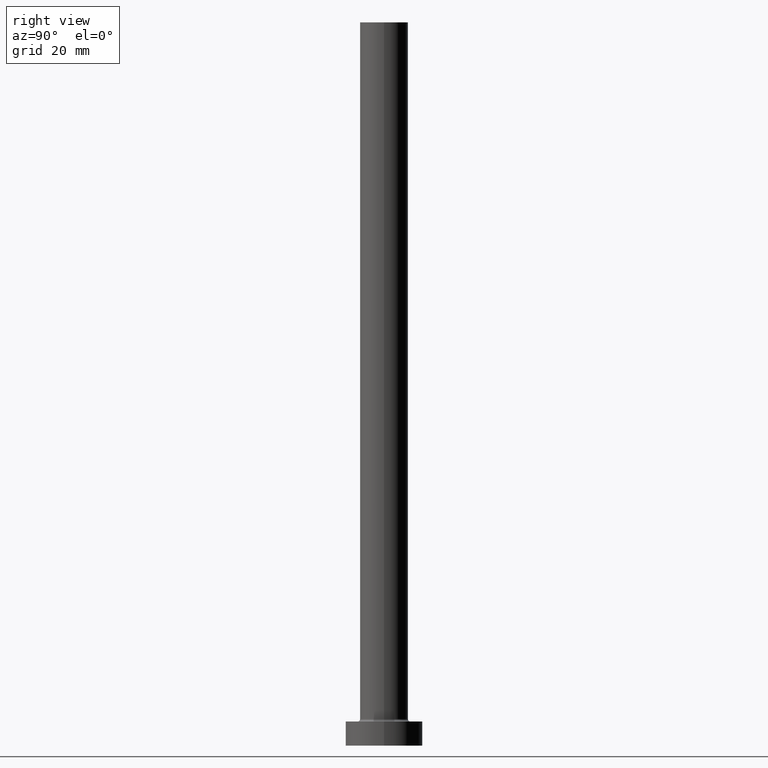
[diagram: clean part render]
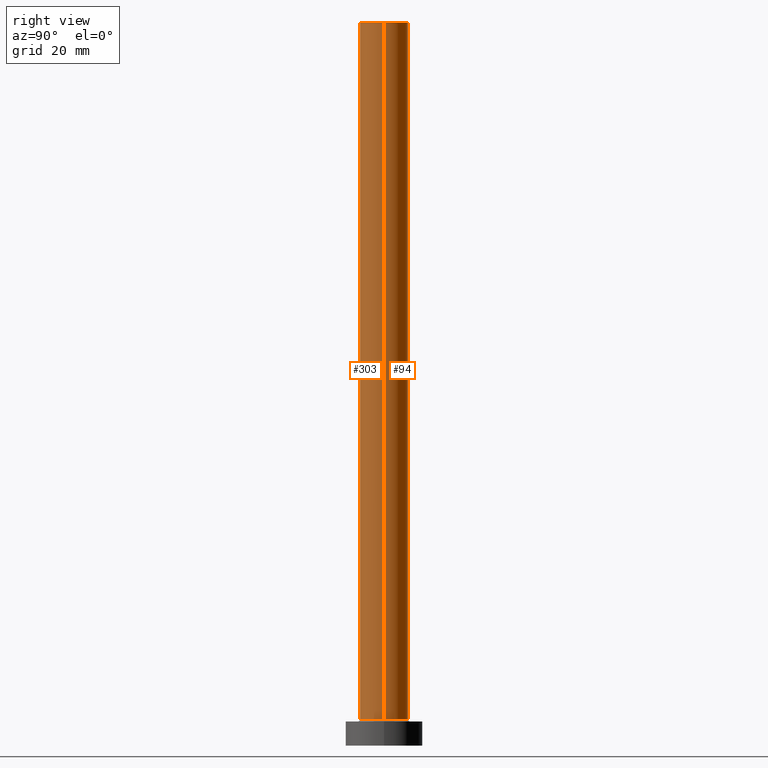
[diagram: same view with one multi-face feature highlighted, each face labeled with its STEP entity id]
A machine part, right view. The highlighted faces form ONE feature: a constant-radius fillet chain: 2 tangent blend faces with common blend radius 5 mm. The faces share edges in the B-rep.
Their STEP definitions:
[1] entity #303 (Cylinder):
#11 = CARTESIAN_POINT ( 'NONE',  ( 0.000000000000000000, 0.000000000000000000, 5.500000000000005329 ) ) ;
#43 = VERTEX_POINT ( 'NONE', #396 ) ;
#51 = EDGE_CURVE ( 'NONE', #305, #43, #143, .T. ) ;
#73 = DIRECTION ( 'NONE',  ( -0.000000000000000000, -0.000000000000000000, -1.000000000000000000 ) ) ;
#74 = CARTESIAN_POINT ( 'NONE',  ( 5.000000000000000000, 6.123233995736766282E-16, 150.0000000000000000 ) ) ;
#78 = VECTOR ( 'NONE', #307, 1000.000000000000000 ) ;
#82 = EDGE_LOOP ( 'NONE', ( #362, #153, #257, #186 ) ) ;
#83 = DIRECTION ( 'NONE',  ( 1.000000000000000000, 0.000000000000000000, 0.000000000000000000 ) ) ;
#89 = CIRCLE ( 'NONE', #343, 5.000000000000000000 ) ;
#122 = DIRECTION ( 'NONE',  ( 1.000000000000000000, 0.000000000000000000, 0.000000000000000000 ) ) ;
#134 = VERTEX_POINT ( 'NONE', #458 ) ;
#143 = LINE ( 'NONE', #145, #415 ) ;
#145 = CARTESIAN_POINT ( 'NONE',  ( -5.000000000000000000, 0.000000000000000000, 150.0000000000000000 ) ) ;
#153 = ORIENTED_EDGE ( 'NONE', *, *, #359, .F. ) ;
#186 = ORIENTED_EDGE ( 'NONE', *, *, #445, .T. ) ;
#194 = LINE ( 'NONE', #264, #78 ) ;
#198 = CARTESIAN_POINT ( 'NONE',  ( 0.000000000000000000, 0.000000000000000000, 150.0000000000000000 ) ) ;
#229 = DIRECTION ( 'NONE',  ( -0.000000000000000000, -0.000000000000000000, -1.000000000000000000 ) ) ;
#236 = FACE_OUTER_BOUND ( 'NONE', #82, .T. ) ;
#238 = VERTEX_POINT ( 'NONE', #74 ) ;
#244 = AXIS2_PLACEMENT_3D ( 'NONE', #198, #267, #83 ) ;
#257 = ORIENTED_EDGE ( 'NONE', *, *, #51, .T. ) ;
#264 = CARTESIAN_POINT ( 'NONE',  ( 5.000000000000000000, 6.123233995736766282E-16, 150.0000000000000000 ) ) ;
#267 = DIRECTION ( 'NONE',  ( 0.000000000000000000, 0.000000000000000000, 1.000000000000000000 ) ) ;
#273 = CIRCLE ( 'NONE', #244, 5.000000000000000000 ) ;
#303 = ADVANCED_FACE ( 'NONE', ( #236 ), #407, .T. ) ;
#305 = VERTEX_POINT ( 'NONE', #441 ) ;
#307 = DIRECTION ( 'NONE',  ( -0.000000000000000000, -0.000000000000000000, -1.000000000000000000 ) ) ;
#331 = DIRECTION ( 'NONE',  ( 0.000000000000000000, 0.000000000000000000, 1.000000000000000000 ) ) ;
#343 = AXIS2_PLACEMENT_3D ( 'NONE', #11, #331, #122 ) ;
#359 = EDGE_CURVE ( 'NONE', #305, #238, #273, .T. ) ;
#362 = ORIENTED_EDGE ( 'NONE', *, *, #371, .F. ) ;
#371 = EDGE_CURVE ( 'NONE', #238, #134, #194, .T. ) ;
#396 = CARTESIAN_POINT ( 'NONE',  ( -5.000000000000000000, 0.000000000000000000, 5.500000000000005329 ) ) ;
#402 = DIRECTION ( 'NONE',  ( -1.000000000000000000, 0.000000000000000000, 0.000000000000000000 ) ) ;
#407 = CYLINDRICAL_SURFACE ( 'NONE', #423, 5.000000000000000000 ) ;
#415 = VECTOR ( 'NONE', #73, 1000.000000000000000 ) ;
#423 = AXIS2_PLACEMENT_3D ( 'NONE', #437, #229, #402 ) ;
#437 = CARTESIAN_POINT ( 'NONE',  ( 0.000000000000000000, 0.000000000000000000, 150.0000000000000000 ) ) ;
#441 = CARTESIAN_POINT ( 'NONE',  ( -5.000000000000000000, 0.000000000000000000, 150.0000000000000000 ) ) ;
#445 = EDGE_CURVE ( 'NONE', #43, #134, #89, .T. ) ;
#458 = CARTESIAN_POINT ( 'NONE',  ( 5.000000000000000000, 6.123233995736766282E-16, 5.500000000000005329 ) ) ;
[2] entity #94 (Cylinder):
#19 = DIRECTION ( 'NONE',  ( 1.000000000000000000, 0.000000000000000000, 0.000000000000000000 ) ) ;
#43 = VERTEX_POINT ( 'NONE', #396 ) ;
#51 = EDGE_CURVE ( 'NONE', #305, #43, #143, .T. ) ;
#52 = CYLINDRICAL_SURFACE ( 'NONE', #124, 5.000000000000000000 ) ;
#73 = DIRECTION ( 'NONE',  ( -0.000000000000000000, -0.000000000000000000, -1.000000000000000000 ) ) ;
#74 = CARTESIAN_POINT ( 'NONE',  ( 5.000000000000000000, 6.123233995736766282E-16, 150.0000000000000000 ) ) ;
#75 = EDGE_LOOP ( 'NONE', ( #228, #284, #84, #90 ) ) ;
#78 = VECTOR ( 'NONE', #307, 1000.000000000000000 ) ;
#79 = EDGE_CURVE ( 'NONE', #134, #43, #452, .T. ) ;
#84 = ORIENTED_EDGE ( 'NONE', *, *, #79, .T. ) ;
#86 = FACE_OUTER_BOUND ( 'NONE', #75, .T. ) ;
#90 = ORIENTED_EDGE ( 'NONE', *, *, #51, .F. ) ;
#94 = ADVANCED_FACE ( 'NONE', ( #86 ), #52, .T. ) ;
#124 = AXIS2_PLACEMENT_3D ( 'NONE', #192, #336, #375 ) ;
#134 = VERTEX_POINT ( 'NONE', #458 ) ;
#143 = LINE ( 'NONE', #145, #415 ) ;
#145 = CARTESIAN_POINT ( 'NONE',  ( -5.000000000000000000, 0.000000000000000000, 150.0000000000000000 ) ) ;
#156 = DIRECTION ( 'NONE',  ( 0.000000000000000000, 0.000000000000000000, 1.000000000000000000 ) ) ;
#168 = AXIS2_PLACEMENT_3D ( 'NONE', #226, #341, #302 ) ;
#192 = CARTESIAN_POINT ( 'NONE',  ( 0.000000000000000000, 0.000000000000000000, 150.0000000000000000 ) ) ;
#194 = LINE ( 'NONE', #264, #78 ) ;
#226 = CARTESIAN_POINT ( 'NONE',  ( 0.000000000000000000, 0.000000000000000000, 150.0000000000000000 ) ) ;
#228 = ORIENTED_EDGE ( 'NONE', *, *, #425, .F. ) ;
#233 = CARTESIAN_POINT ( 'NONE',  ( 0.000000000000000000, 0.000000000000000000, 5.500000000000005329 ) ) ;
#238 = VERTEX_POINT ( 'NONE', #74 ) ;
#264 = CARTESIAN_POINT ( 'NONE',  ( 5.000000000000000000, 6.123233995736766282E-16, 150.0000000000000000 ) ) ;
#284 = ORIENTED_EDGE ( 'NONE', *, *, #371, .T. ) ;
#302 = DIRECTION ( 'NONE',  ( 1.000000000000000000, 0.000000000000000000, 0.000000000000000000 ) ) ;
#305 = VERTEX_POINT ( 'NONE', #441 ) ;
#307 = DIRECTION ( 'NONE',  ( -0.000000000000000000, -0.000000000000000000, -1.000000000000000000 ) ) ;
#326 = CIRCLE ( 'NONE', #168, 5.000000000000000000 ) ;
#336 = DIRECTION ( 'NONE',  ( -0.000000000000000000, -0.000000000000000000, -1.000000000000000000 ) ) ;
#341 = DIRECTION ( 'NONE',  ( 0.000000000000000000, 0.000000000000000000, 1.000000000000000000 ) ) ;
#371 = EDGE_CURVE ( 'NONE', #238, #134, #194, .T. ) ;
#375 = DIRECTION ( 'NONE',  ( -1.000000000000000000, 0.000000000000000000, 0.000000000000000000 ) ) ;
#396 = CARTESIAN_POINT ( 'NONE',  ( -5.000000000000000000, 0.000000000000000000, 5.500000000000005329 ) ) ;
#410 = AXIS2_PLACEMENT_3D ( 'NONE', #233, #156, #19 ) ;
#415 = VECTOR ( 'NONE', #73, 1000.000000000000000 ) ;
#425 = EDGE_CURVE ( 'NONE', #238, #305, #326, .T. ) ;
#441 = CARTESIAN_POINT ( 'NONE',  ( -5.000000000000000000, 0.000000000000000000, 150.0000000000000000 ) ) ;
#452 = CIRCLE ( 'NONE', #410, 5.000000000000000000 ) ;
#458 = CARTESIAN_POINT ( 'NONE',  ( 5.000000000000000000, 6.123233995736766282E-16, 5.500000000000005329 ) ) ;